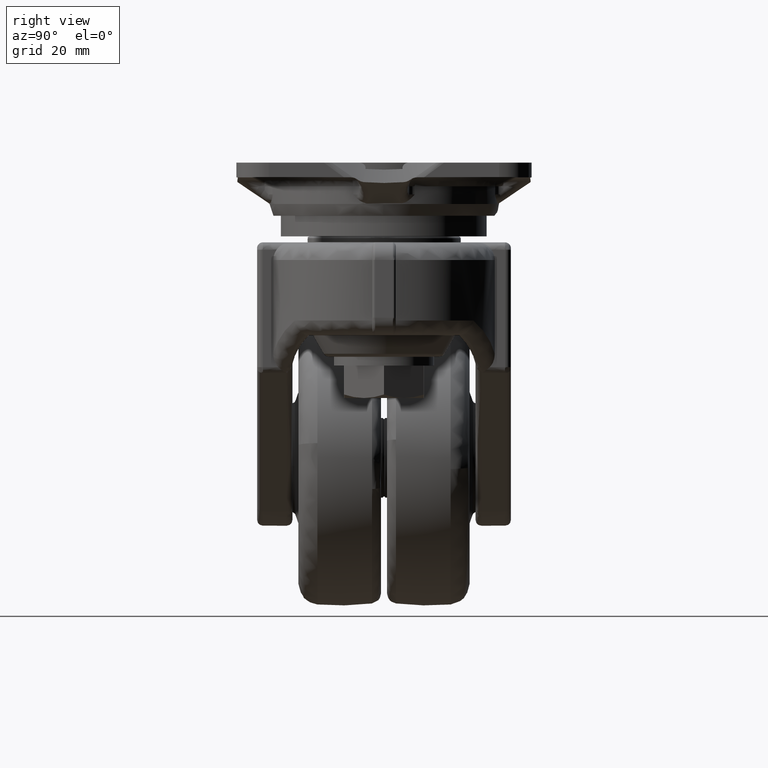
[diagram: clean part render]
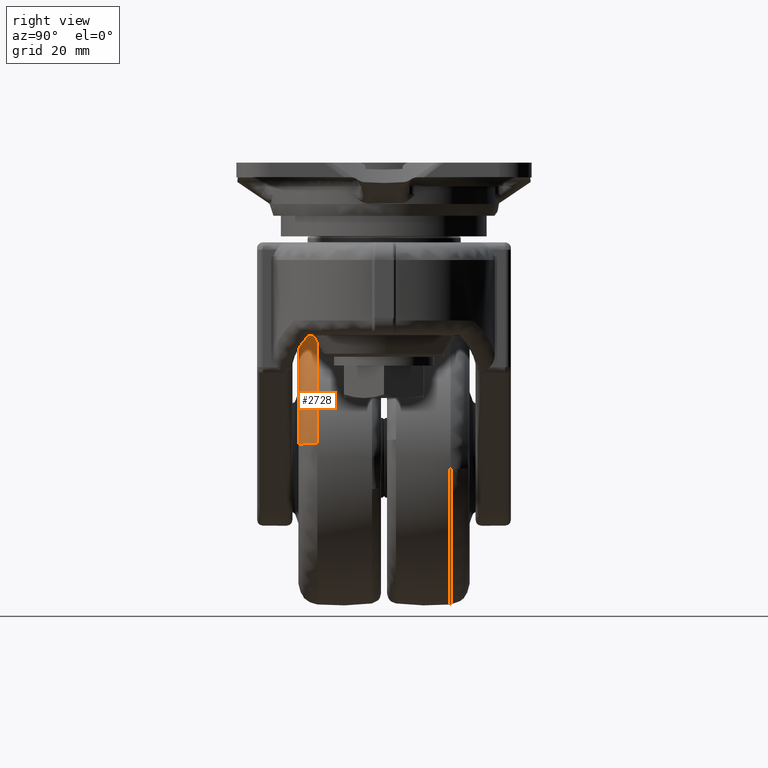
[diagram: same view with one face highlighted and labeled with its STEP entity id]
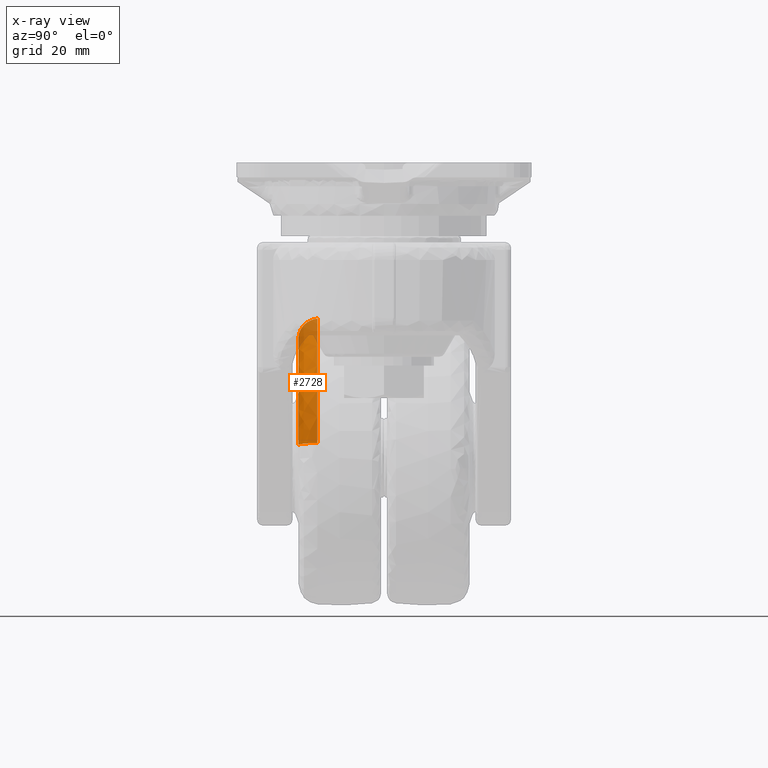
[diagram: x-ray of the same camera — body ghosted, the highlighted face saturated]
A machine part, right view. The second image highlights one B-rep face of the part: STEP entity #2728.
The next image is the same camera in x-ray: the body ghosted, the highlighted face saturated — about 13% of this face is hidden behind the body in this view.
In plain terms, the highlighted face is a freeform B-spline surface patch.
Its self-contained STEP definition (entity closure, byte-faithful):
#2649=CARTESIAN_POINT('',(-56.540565783922219,-28.984416073358236,-41.964432587804957));
#2650=CARTESIAN_POINT('',(-30.710699864957597,-28.984416073358226,-50.648095730806048));
#2651=CARTESIAN_POINT('',(-27.975796216152471,-28.984416073358229,-77.760976083224477));
#2652=CARTESIAN_POINT('',(-54.203205756725204,-29.474676811621368,-35.011871771865614));
#2653=CARTESIAN_POINT('',(-23.887735529466021,-29.474676811621361,-45.203536424755541));
#2654=CARTESIAN_POINT('',(-20.677889593761751,-29.474676811621364,-77.024828864973060));
#2655=CARTESIAN_POINT('',(-54.161530134326910,-22.124533612091756,-34.887906145734135));
#2656=CARTESIAN_POINT('',(-23.766080635921920,-22.124533612091756,-45.106458783688780));
#2657=CARTESIAN_POINT('',(-20.547766379043569,-22.124533612091753,-77.011703204766519));
#2665=(BOUNDED_SURFACE()B_SPLINE_SURFACE(2,2,((#2649,#2652,#2655),(#2650,#2653,#2656),(#2651,#2654,#2657)),.UNSPECIFIED.,.F.,.F.,.U.)B_SPLINE_SURFACE_WITH_KNOTS((3,3),(3,3),(0.0,58.505692545174469),(0.0,12.001469207873480),.UNSPECIFIED.)GEOMETRIC_REPRESENTATION_ITEM()RATIONAL_B_SPLINE_SURFACE(((0.804094234882899,0.554904204782798,0.805278413973450),(0.719492472607828,0.496520657703508,0.720552059786680),(0.911769205051171,0.629210537429167,0.913111955665702)))REPRESENTATION_ITEM('')SURFACE());
#2666=CARTESIAN_POINT('',(-54.169124254804863,-22.590360868650340,-34.910495128110178));
#2667=VERTEX_POINT('',#2666);
#2668=CARTESIAN_POINT('',(-20.571477017574111,-22.590351365811038,-77.014094920766382));
#2669=VERTEX_POINT('',#2668);
#2670=CARTESIAN_POINT('',(-54.169124254804856,-22.590360868650343,-34.910495128110171));
#2671=CARTESIAN_POINT('',(-23.788249168682270,-22.590358549978681,-45.124148289022258));
#2672=CARTESIAN_POINT('',(-20.571477017574114,-22.590351365811038,-77.014094920766382));
#2680=(BOUNDED_CURVE()B_SPLINE_CURVE(2,(#2670,#2671,#2672),.UNSPECIFIED.,.F.,.U.)B_SPLINE_CURVE_WITH_KNOTS((3,3),(0.054168823066889,0.232576555802283),.UNSPECIFIED.)CURVE()GEOMETRIC_REPRESENTATION_ITEM()RATIONAL_B_SPLINE_CURVE((0.900576160871229,0.782136425779017,0.962019625847641))REPRESENTATION_ITEM(''));
#2681=EDGE_CURVE('',#2667,#2669,#2680,.T.);
#2682=ORIENTED_EDGE('',*,*,#2681,.F.);
#2683=CARTESIAN_POINT('',(-56.391804598703523,-29.0,-41.521937133909319));
#2684=VERTEX_POINT('',#2683);
#2685=CARTESIAN_POINT('',(-56.391804598703523,-28.999999999999996,-41.521937133909326));
#2686=CARTESIAN_POINT('',(-54.341999223494376,-28.999999994624613,-35.424717891992422));
#2687=CARTESIAN_POINT('',(-54.169124254804856,-22.590360868650347,-34.910495128110171));
#2695=(BOUNDED_CURVE()B_SPLINE_CURVE(2,(#2685,#2686,#2687),.UNSPECIFIED.,.F.,.U.)B_SPLINE_CURVE_WITH_KNOTS((3,3),(-1.712826342534263,-0.283448256965041),.UNSPECIFIED.)CURVE()GEOMETRIC_REPRESENTATION_ITEM()RATIONAL_B_SPLINE_CURVE((0.782491430817676,0.576560976561135,0.783567672493409))REPRESENTATION_ITEM(''));
#2696=EDGE_CURVE('',#2684,#2667,#2695,.T.);
#2697=ORIENTED_EDGE('',*,*,#2696,.F.);
#2698=CARTESIAN_POINT('',(-27.511321238750511,-29.0,-77.714124022097238));
#2699=VERTEX_POINT('',#2698);
#2700=CARTESIAN_POINT('',(-56.391804598703523,-28.999999999999993,-41.521937133909319));
#2701=CARTESIAN_POINT('',(-30.276452577349460,-29.000000000000004,-50.301576974507853));
#2702=CARTESIAN_POINT('',(-27.511321238750515,-29.000000000000004,-77.714124022097238));
#2710=(BOUNDED_CURVE()B_SPLINE_CURVE(2,(#2700,#2701,#2702),.UNSPECIFIED.,.F.,.U.)B_SPLINE_CURVE_WITH_KNOTS((3,3),(0.054168823122165,0.232576558912858),.UNSPECIFIED.)CURVE()GEOMETRIC_REPRESENTATION_ITEM()RATIONAL_B_SPLINE_CURVE((0.900576160797837,0.782136423769729,0.962019632120242))REPRESENTATION_ITEM(''));
#2711=EDGE_CURVE('',#2684,#2699,#2710,.T.);
#2712=ORIENTED_EDGE('',*,*,#2711,.T.);
#2713=CARTESIAN_POINT('',(-27.511321238750515,-28.999999999999996,-77.714124022097238));
#2714=CARTESIAN_POINT('',(-21.111233781231459,-28.999999988092380,-77.068540731218746));
#2715=CARTESIAN_POINT('',(-20.571477017574111,-22.590351365811038,-77.014094920766368));
#2723=(BOUNDED_CURVE()B_SPLINE_CURVE(2,(#2713,#2714,#2715),.UNSPECIFIED.,.F.,.U.)B_SPLINE_CURVE_WITH_KNOTS((3,3),(-1.712826341462392,-0.283446822315411),.UNSPECIFIED.)CURVE()GEOMETRIC_REPRESENTATION_ITEM()RATIONAL_B_SPLINE_CURVE((0.887273603768950,0.653767098612834,0.888494434777733))REPRESENTATION_ITEM(''));
#2724=EDGE_CURVE('',#2699,#2669,#2723,.T.);
#2725=ORIENTED_EDGE('',*,*,#2724,.T.);
#2726=EDGE_LOOP('',(#2682,#2697,#2712,#2725));
#2727=FACE_OUTER_BOUND('',#2726,.T.);
#2728=ADVANCED_FACE('',(#2727),#2665,.T.);